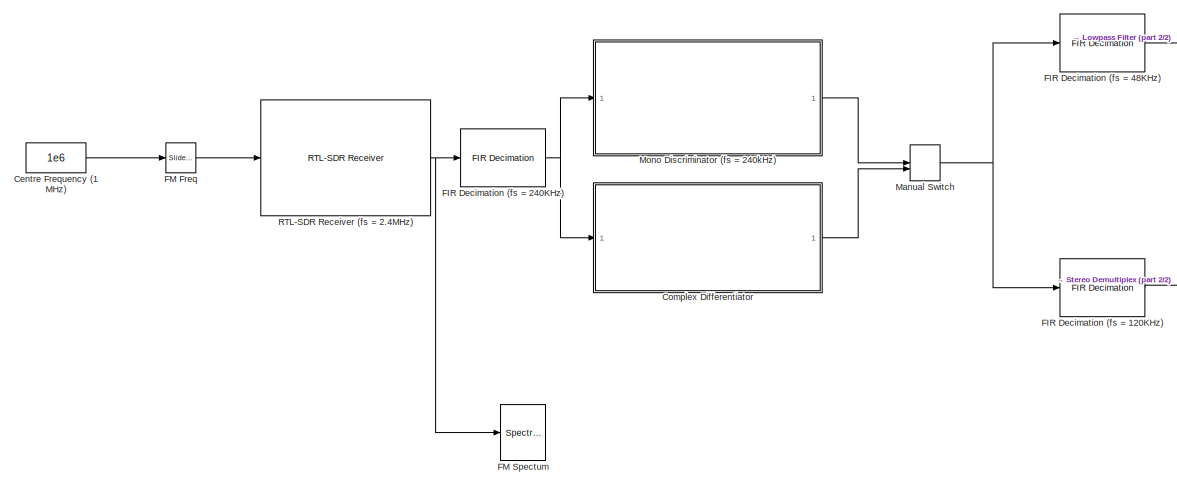
[diagram: root canvas - part 1/2, left side, full height]
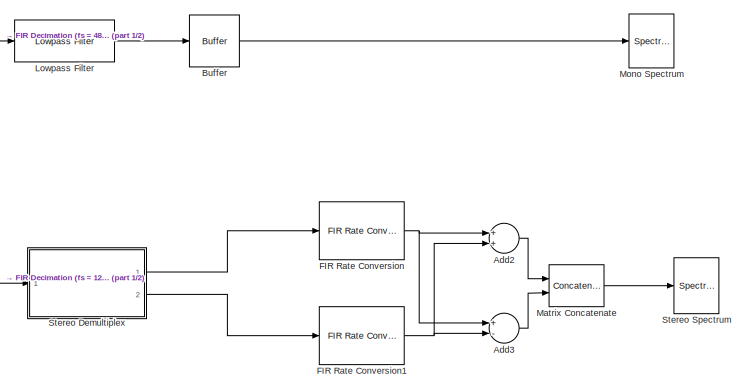
[diagram: root canvas - part 2/2, right side, full height]
MODEL slx_1be4670812ec
KIND model
CONFIG AbsTol = auto
CONFIG EnableMultiTasking = off
CONFIG FixedStep = auto
CONFIG MaxStep = auto
CONFIG MinStep = auto
CONFIG PreLoadFcn = fs = 120e3;\naudio_fs = 48e3;\n[num, den] = cheby2(22,100,18e3/(fs/2),'low');\n\n% nco design\nfreq_res = 0.05;                              % nco freq resolution in Hz\nacc_wordlen = ceil(log2(1/((1/fs)*freq_res))); % calc required wordlength\nsfdr = 80;                                  % spurious free dynamic range of nco (noise floor level)\nphase_inc = 2^acc_wordlen/fs;    % NCO phase increment\nquant_...<+288ch>
CONFIG RelTol = 1e-3
CONFIG SampleTimeConstraint = Unconstrained
CONFIG Solver = VariableStepAuto
CONFIG SolverName = VariableStepAuto
CONFIG StartTime = 0.0
CONFIG StopTime = inf
BLOCK [Sum] Add2
  InputSameDT = off
  OutDataTypeStr = Inherit: Inherit via internal rule
  Ports = [2, 1]
  SaturateOnIntegerOverflow = off
BLOCK [Sum] Add3
  InputSameDT = off
  Inputs = +-
  OutDataTypeStr = Inherit: Inherit via internal rule
  Ports = [2, 1]
  SaturateOnIntegerOverflow = off
BLOCK [Buffer] Buffer
  N = 4000
  OutputFrames = off
BLOCK [Constant] Centre Frequency (1 MHz)
  Value = 1e6
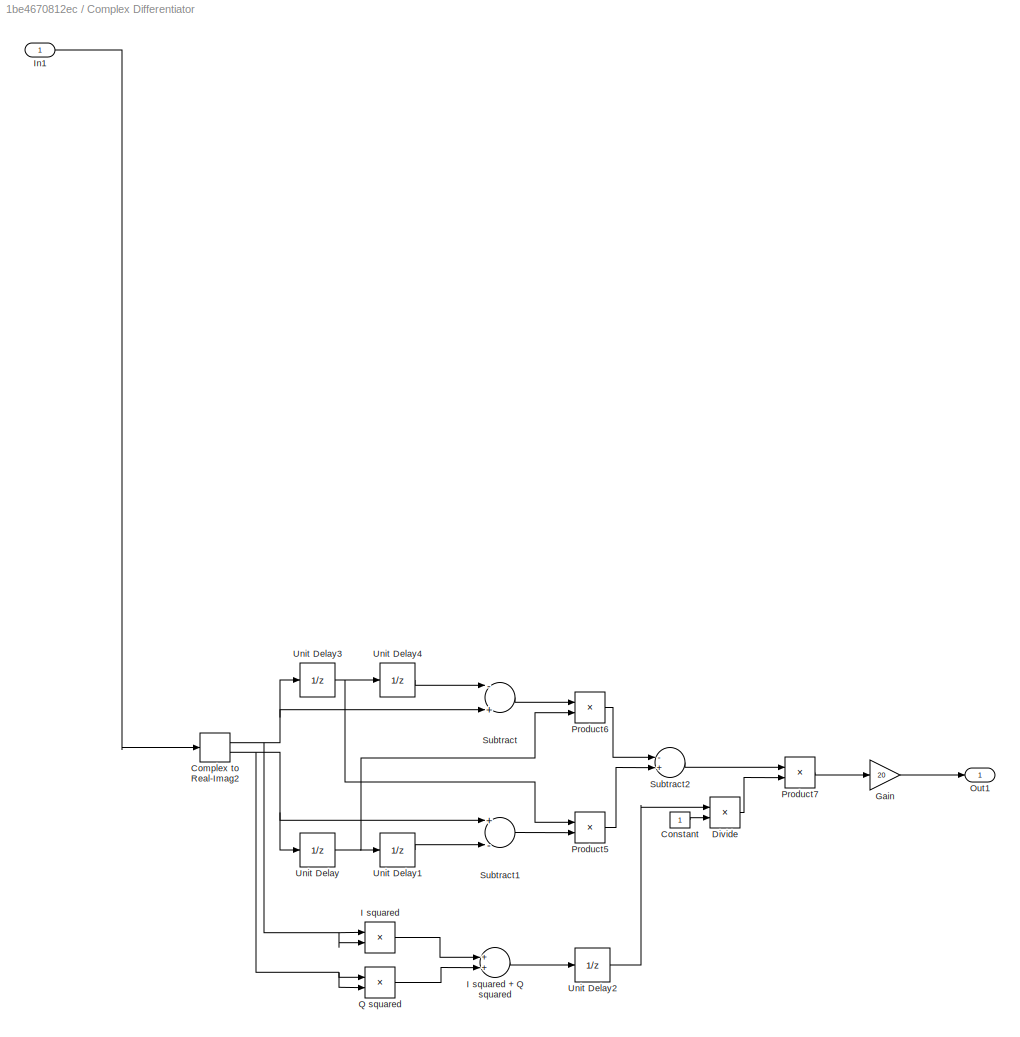
BLOCK [SubSystem] Complex Differentiator
  Ports = [1, 1]
  RequestExecContextInheritance = off
BLOCK [ComplexToRealImag] Complex Differentiator/Complex to Real-Imag2
  Ports = [1, 2]
BLOCK [Constant] Complex Differentiator/Constant
BLOCK [Product] Complex Differentiator/Divide
  InputSameDT = off
  Inputs = */
  OutDataTypeStr = Inherit: Inherit via internal rule
  Ports = [2, 1]
  RndMeth = Floor
  SaturateOnIntegerOverflow = off
BLOCK [Gain] Complex Differentiator/Gain
  Gain = 20
  OutDataTypeStr = Inherit: Inherit via internal rule
  ParamDataTypeStr = Inherit: Inherit via internal rule
  SaturateOnIntegerOverflow = off
BLOCK [Sum] Complex Differentiator/I  squared + Q  squared
  InputSameDT = off
  OutDataTypeStr = Inherit: Inherit via internal rule
  Ports = [2, 1]
  SaturateOnIntegerOverflow = off
BLOCK [Product] Complex Differentiator/I squared
  InputSameDT = off
  OutDataTypeStr = Inherit: Inherit via internal rule
  Ports = [2, 1]
  RndMeth = Floor
  SaturateOnIntegerOverflow = off
BLOCK [Inport] Complex Differentiator/In1
  IconDisplay = Port number
BLOCK [Outport] Complex Differentiator/Out1
  IconDisplay = Port number
BLOCK [Product] Complex Differentiator/Product5
  InputSameDT = off
  OutDataTypeStr = Inherit: Inherit via internal rule
  Ports = [2, 1]
  RndMeth = Floor
  SaturateOnIntegerOverflow = off
BLOCK [Product] Complex Differentiator/Product6
  InputSameDT = off
  OutDataTypeStr = Inherit: Inherit via internal rule
  Ports = [2, 1]
  RndMeth = Floor
  SaturateOnIntegerOverflow = off
BLOCK [Product] Complex Differentiator/Product7
  InputSameDT = off
  OutDataTypeStr = Inherit: Inherit via internal rule
  Ports = [2, 1]
  RndMeth = Floor
  SaturateOnIntegerOverflow = off
BLOCK [Product] Complex Differentiator/Q  squared
  InputSameDT = off
  OutDataTypeStr = Inherit: Inherit via internal rule
  Ports = [2, 1]
  RndMeth = Floor
  SaturateOnIntegerOverflow = off
BLOCK [Sum] Complex Differentiator/Subtract
  InputSameDT = off
  Inputs = -+
  OutDataTypeStr = Inherit: Inherit via internal rule
  Ports = [2, 1]
  SaturateOnIntegerOverflow = off
BLOCK [Sum] Complex Differentiator/Subtract1
  InputSameDT = off
  Inputs = +-
  OutDataTypeStr = Inherit: Inherit via internal rule
  Ports = [2, 1]
  SaturateOnIntegerOverflow = off
BLOCK [Sum] Complex Differentiator/Subtract2
  InputSameDT = off
  Inputs = -+
  OutDataTypeStr = Inherit: Inherit via internal rule
  Ports = [2, 1]
  SaturateOnIntegerOverflow = off
BLOCK [UnitDelay] Complex Differentiator/Unit Delay
  SampleTime = -1
BLOCK [UnitDelay] Complex Differentiator/Unit Delay1
  SampleTime = -1
BLOCK [UnitDelay] Complex Differentiator/Unit Delay2
  SampleTime = -1
BLOCK [UnitDelay] Complex Differentiator/Unit Delay3
  SampleTime = -1
BLOCK [UnitDelay] Complex Differentiator/Unit Delay4
  SampleTime = -1
BLOCK [Reference] FIR Decimation (fs = 120KHz)  REF=dspmlti4/FIR
Decimation
  Ports = [1, 1]
  SourceBlock = dspmlti4/FIR\nDecimation
  SourceProductBaseCode = DS
  SourceProductName = DSP System Toolbox
  SourceType = FIR Decimation
  UserDataPersistent = on
BLOCK [Reference] FIR Decimation (fs = 240KHz)  REF=dspmlti4/FIR
Decimation
  Ports = [1, 1]
  SourceBlock = dspmlti4/FIR\nDecimation
  SourceProductBaseCode = DS
  SourceProductName = DSP System Toolbox
  SourceType = FIR Decimation
  UserDataPersistent = on
BLOCK [Reference] FIR Decimation (fs = 48KHz)   REF=dspmlti4/FIR
Decimation
  Ports = [1, 1]
  SourceBlock = dspmlti4/FIR\nDecimation
  SourceProductBaseCode = DS
  SourceProductName = DSP System Toolbox
  SourceType = FIR Decimation
  UserDataPersistent = on
BLOCK [Reference] FIR Rate Conversion  REF=dspmlti4/FIR Rate
Conversion
  Ports = [1, 1]
  SourceBlock = dspmlti4/FIR Rate\nConversion
  SourceProductBaseCode = DS
  SourceProductName = DSP System Toolbox
  SourceType = FIR Rate Conversion
BLOCK [Reference] FIR Rate Conversion1  REF=dspmlti4/FIR Rate
Conversion
  Ports = [1, 1]
  SourceBlock = dspmlti4/FIR Rate\nConversion
  SourceProductBaseCode = DS
  SourceProductName = DSP System Toolbox
  SourceType = FIR Rate Conversion
BLOCK [Reference] FM Freq   REF=simulink/Math
Operations/Slider
Gain
  Ports = [1, 1]
  SourceBlock = simulink/Math\nOperations/Slider\nGain
  SourceProductBaseCode = SL
  SourceProductName = Simulink
  SourceType = Slider Gain
BLOCK [SpectrumAnalyzer] FM Spectum
  Ports = [1]
  ScopeSpecificationString = spbscopes.SpectrumAnalyzerBlockCfg('CurrentConfiguration', extmgr.ConfigurationSet(extmgr.Configuration('Core','General UI',true),extmgr.Configuration('Core','Source UI',true),extmgr.Configuration('Sources','WiredSimulink',true),extmgr.Configuration('Sources','SimulinkEvent',false),extmgr.Configuration('Sources','Simulink',false),extmgr.Configuration('Sources','SPTool',false),extmgr.Configuration(...<+3671ch>
BLOCK [Reference] Lowpass Filter  REF=dspfdesign/Lowpass Filter
  Ports = [1, 1]
  SourceBlock = dspfdesign/Lowpass Filter
  SourceProductBaseCode = DS
  SourceProductName = DSP System Toolbox
  SourceType = dsp.LowpassFilter
BLOCK [ManualSwitch] Manual Switch
BLOCK [Concatenate] Matrix Concatenate
  ConcatenateDimension = 2
  Mode = Multidimensional array
  Ports = [2, 1]
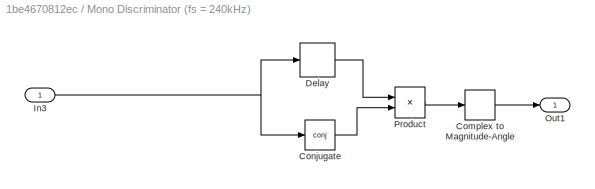
BLOCK [SubSystem] Mono Discriminator (fs = 240kHz)
  Ports = [1, 1]
  RequestExecContextInheritance = off
BLOCK [ComplexToMagnitudeAngle] Mono Discriminator (fs = 240kHz)/Complex to Magnitude-Angle
  Output = Angle
  Ports = [1, 1]
BLOCK [Math] Mono Discriminator (fs = 240kHz)/Conjugate
  Operator = conj
  Ports = [1, 1]
BLOCK [Delay] Mono Discriminator (fs = 240kHz)/Delay
  DelayLength = 1
  InputPortMap = u0
  InputProcessing = Columns as channels (frame based)
  Ports = [1, 1]
BLOCK [Inport] Mono Discriminator (fs = 240kHz)/In3
  IconDisplay = Port number
BLOCK [Outport] Mono Discriminator (fs = 240kHz)/Out1
  IconDisplay = Port number
BLOCK [Product] Mono Discriminator (fs = 240kHz)/Product
  InputSameDT = off
  OutDataTypeStr = Inherit: Inherit via internal rule
  Ports = [2, 1]
  RndMeth = Floor
  SaturateOnIntegerOverflow = off
BLOCK [SpectrumAnalyzer] Mono Spectrum 
  Ports = [1]
  ScopeSpecificationString = spbscopes.SpectrumAnalyzerBlockCfg('CurrentConfiguration', extmgr.ConfigurationSet(extmgr.Configuration('Core','General UI',true),extmgr.Configuration('Core','Source UI',true),extmgr.Configuration('Sources','WiredSimulink',true),extmgr.Configuration('Sources','SimulinkEvent',false),extmgr.Configuration('Sources','Simulink',false),extmgr.Configuration('Sources','SPTool',false),extmgr.Configuration(...<+3270ch>
BLOCK [Reference] RTL-SDR Receiver (fs = 2.4MHz)  REF=sdrrlib/RTL-SDR
Receiver
  Ports = [1, 1]
  SourceBlock = sdrrlib/RTL-SDR\nReceiver
  SourceProductBaseCode = RTLSDR
  SourceProductName = Communications System Toolbox Support Package for RTL-SDR Radio
  SourceType = RTL-SDR Receiver
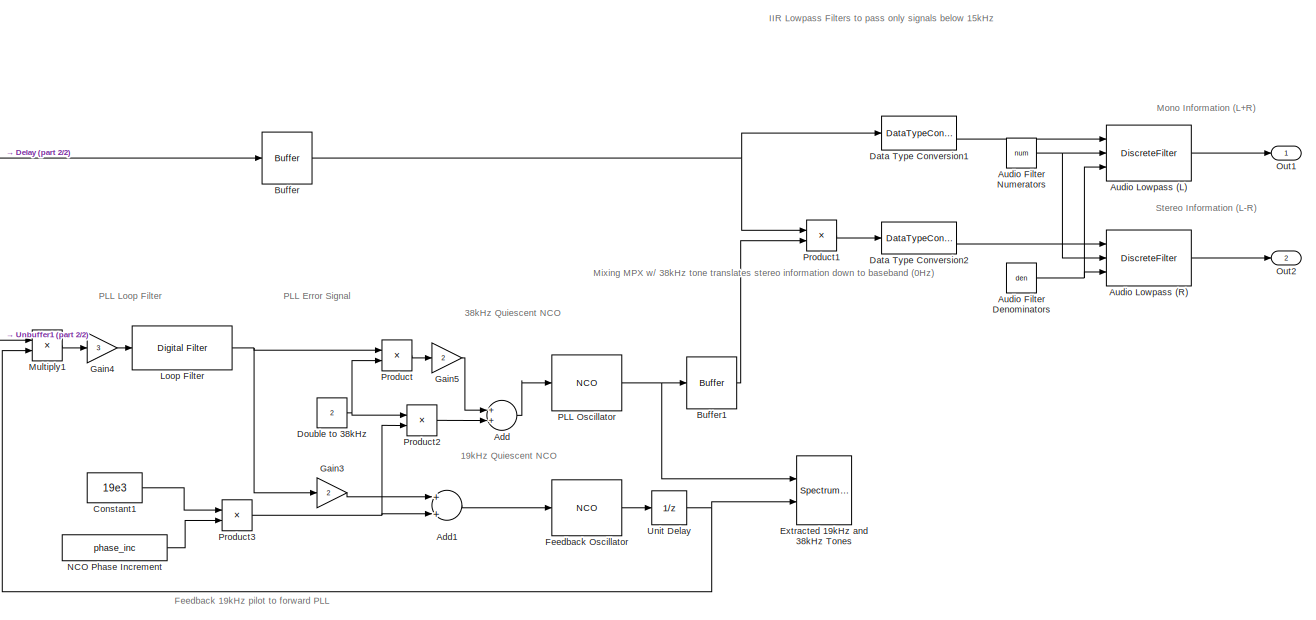
[diagram: Stereo Demultiplex - part 1/2, center side, full height]
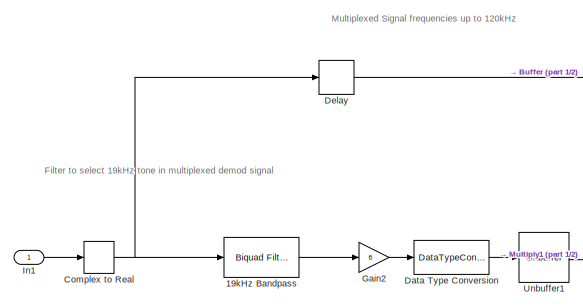
[diagram: Stereo Demultiplex - part 2/2, middle left region]
BLOCK [SubSystem] Stereo Demultiplex
  Ports = [1, 2]
  RequestExecContextInheritance = off
BLOCK [Reference] Stereo Demultiplex/19kHz Bandpass  REF=dsparch4/Biquad Filter
  Ports = [1, 1]
  SourceBlock = dsparch4/Biquad Filter
  SourceProductBaseCode = DS
  SourceProductName = DSP System Toolbox
  SourceType = Biquad Filter
  Tag = BlockMethodSubSystem
  UserDataPersistent = on
BLOCK [Sum] Stereo Demultiplex/Add
  InputSameDT = off
  Ports = [2, 1]
  SaturateOnIntegerOverflow = off
BLOCK [Sum] Stereo Demultiplex/Add1
  InputSameDT = off
  Ports = [2, 1]
  SaturateOnIntegerOverflow = off
BLOCK [Constant] Stereo Demultiplex/Audio Filter Denominators
  Value = den
BLOCK [Constant] Stereo Demultiplex/Audio Filter Numerators 
  Value = num
BLOCK [DiscreteFilter] Stereo Demultiplex/Audio Lowpass (L)
  Denominator = [1 0.1]
  DenominatorSource = Input port
  FilterStructure = Direct form II transposed
  InputPortMap = u0,p1,p3
  InputProcessing = Columns as channels (frame based)
  Numerator = [0.5 0.5]
  NumeratorSource = Input port
  Ports = [3, 1]
  a0EqualsOne = on
BLOCK [DiscreteFilter] Stereo Demultiplex/Audio Lowpass (R)
  Denominator = [1 0.1]
  DenominatorSource = Input port
  FilterStructure = Direct form II transposed
  InputPortMap = u0,p1,p3
  InputProcessing = Columns as channels (frame based)
  Numerator = [0.5 0.5]
  NumeratorSource = Input port
  Ports = [3, 1]
  a0EqualsOne = on
BLOCK [Buffer] Stereo Demultiplex/Buffer
  N = 4000
  OutputFrames = off
BLOCK [Buffer] Stereo Demultiplex/Buffer1
  N = 4000
  OutputFrames = off
BLOCK [ComplexToRealImag] Stereo Demultiplex/Complex to Real
  Output = Real
  Ports = [1, 1]
BLOCK [Constant] Stereo Demultiplex/Constant1
  OutDataTypeStr = uint32
  Value = 19e3
BLOCK [DataTypeConversion] Stereo Demultiplex/Data Type Conversion
  SaturateOnIntegerOverflow = off
BLOCK [DataTypeConversion] Stereo Demultiplex/Data Type Conversion1
  RndMeth = Simplest
  SaturateOnIntegerOverflow = off
BLOCK [DataTypeConversion] Stereo Demultiplex/Data Type Conversion2
  RndMeth = Simplest
  SaturateOnIntegerOverflow = off
BLOCK [Delay] Stereo Demultiplex/Delay
  DelayLength = 6
  InitialCondition = 0
  InputPortMap = u0
  InputProcessing = Columns as channels (frame based)
  Ports = [1, 1]
BLOCK [Constant] Stereo Demultiplex/Double to 38kHz
  Value = 2
BLOCK [SpectrumAnalyzer] Stereo Demultiplex/Extracted 19kHz and 38kHz Tones 
  NumInputPorts = 2
  Ports = [2]
  ScopeSpecificationString = spbscopes.SpectrumAnalyzerBlockCfg('CurrentConfiguration', extmgr.ConfigurationSet(extmgr.Configuration('Core','General UI',true),extmgr.Configuration('Core','Source UI',true),extmgr.Configuration('Sources','WiredSimulink',true),extmgr.Configuration('Sources','SimulinkEvent',false),extmgr.Configuration('Sources','Simulink',false),extmgr.Configuration('Sources','SPTool',false),extmgr.Configuration(...<+3372ch>
BLOCK [Reference] Stereo Demultiplex/Feedback Oscillator  REF=dspsigops/NCO
  Ports = [1, 1]
  SourceBlock = dspsigops/NCO
  SourceProductBaseCode = DS
  SourceProductName = DSP System Toolbox
  SourceType = NCO
BLOCK [Gain] Stereo Demultiplex/Gain2
  Gain = 6
  OutDataTypeStr = Inherit: Inherit via internal rule
  ParamDataTypeStr = Inherit: Inherit via internal rule
  SaturateOnIntegerOverflow = off
BLOCK [Gain] Stereo Demultiplex/Gain3
  Gain = 2
  OutDataTypeStr = int32
  ParamDataTypeStr = Inherit: Inherit via internal rule
  SaturateOnIntegerOverflow = off
BLOCK [Gain] Stereo Demultiplex/Gain4
  Gain = 3
  OutDataTypeStr = Inherit: Inherit via internal rule
  ParamDataTypeStr = Inherit: Inherit via internal rule
  SaturateOnIntegerOverflow = off
BLOCK [Gain] Stereo Demultiplex/Gain5
  Gain = 2
  OutDataTypeStr = int32
  ParamDataTypeStr = Inherit: Inherit via internal rule
  SaturateOnIntegerOverflow = off
BLOCK [Inport] Stereo Demultiplex/In1
  IconDisplay = Port number
BLOCK [Reference] Stereo Demultiplex/Loop Filter  REF=dspobslib/Digital Filter
  Ports = [1, 1]
  SourceBlock = dspobslib/Digital Filter
  SourceProductBaseCode = DS
  SourceProductName = DSP System Toolbox
  SourceType = Digital Filter
  UserDataPersistent = on
BLOCK [Product] Stereo Demultiplex/Multiply1
  InputSameDT = off
  OutDataTypeStr = Inherit: Inherit via back propagation
  Ports = [2, 1]
  RndMeth = Floor
  SaturateOnIntegerOverflow = off
BLOCK [Constant] Stereo Demultiplex/NCO Phase Increment
  OutDataTypeStr = uint32
  Value = phase_inc
BLOCK [Outport] Stereo Demultiplex/Out1
  IconDisplay = Port number
BLOCK [Outport] Stereo Demultiplex/Out2
  IconDisplay = Port number
  Port = 2
BLOCK [Reference] Stereo Demultiplex/PLL Oscillator  REF=dspsigops/NCO
  Ports = [1, 1]
  SourceBlock = dspsigops/NCO
  SourceProductBaseCode = DS
  SourceProductName = DSP System Toolbox
  SourceType = NCO
BLOCK [Product] Stereo Demultiplex/Product
  InputSameDT = off
  OutDataTypeStr = Inherit: Inherit via internal rule
  Ports = [2, 1]
  RndMeth = Floor
  SaturateOnIntegerOverflow = off
BLOCK [Product] Stereo Demultiplex/Product1
  InputSameDT = off
  OutDataTypeStr = Inherit: Inherit via internal rule
  Ports = [2, 1]
  RndMeth = Floor
  SaturateOnIntegerOverflow = off
BLOCK [Product] Stereo Demultiplex/Product2
  InputSameDT = off
  OutDataTypeStr = Inherit: Inherit via internal rule
  Ports = [2, 1]
  RndMeth = Floor
  SaturateOnIntegerOverflow = off
BLOCK [Product] Stereo Demultiplex/Product3
  InputSameDT = off
  Ports = [2, 1]
  RndMeth = Floor
  SaturateOnIntegerOverflow = off
BLOCK [Unbuffer] Stereo Demultiplex/Unbuffer1
  Ports = [1, 1]
BLOCK [UnitDelay] Stereo Demultiplex/Unit Delay
  SampleTime = -1
BLOCK [SpectrumAnalyzer] Stereo Spectrum 
  Ports = [1]
  ScopeSpecificationString = spbscopes.SpectrumAnalyzerBlockCfg('CurrentConfiguration', extmgr.ConfigurationSet(extmgr.Configuration('Core','General UI',true),extmgr.Configuration('Core','Source UI',true),extmgr.Configuration('Sources','WiredSimulink',true),extmgr.Configuration('Sources','SimulinkEvent',false),extmgr.Configuration('Sources','Simulink',false),extmgr.Configuration('Sources','SPTool',false),extmgr.Configuration(...<+3685ch>
ANNOTATION Stereo Demultiplex: Mixing MPX w/ 38kHz tone translates stereo information down to baseband (0Hz)
ANNOTATION Stereo Demultiplex: Stereo Information (L-R)
ANNOTATION Stereo Demultiplex: Feedback 19kHz pilot to forward PLL
ANNOTATION Stereo Demultiplex: Multiplexed Signal frequencies up to 120kHz
ANNOTATION Stereo Demultiplex: Mono Information (L+R)
ANNOTATION Stereo Demultiplex: 19kHz Quiescent NCO
ANNOTATION Stereo Demultiplex: 38kHz Quiescent NCO
ANNOTATION Stereo Demultiplex: PLL Error Signal
ANNOTATION Stereo Demultiplex: PLL Loop Filter
ANNOTATION Stereo Demultiplex: Filter to select 19kHz tone in multiplexed demod signal
ANNOTATION Stereo Demultiplex: IIR Lowpass Filters to pass only signals below 15kHz
LINE Add2:1 -> Matrix Concatenate:1
LINE Add3:1 -> Matrix Concatenate:2
LINE Buffer:1 -> Mono Spectrum :1
LINE Centre Frequency (1 MHz):1 -> FM Freq :1
NET Complex Differentiator/Complex to Real-Imag2:1 -> Complex Differentiator/I squared:1, Complex Differentiator/I squared:2, Complex Differentiator/Subtract:2, Complex Differentiator/Unit Delay3:1
NET Complex Differentiator/Complex to Real-Imag2:2 -> Complex Differentiator/Q  squared:1, Complex Differentiator/Q  squared:2, Complex Differentiator/Subtract1:1, Complex Differentiator/Unit Delay:1
LINE Complex Differentiator/Constant:1 -> Complex Differentiator/Divide:2
LINE Complex Differentiator/Divide:1 -> Complex Differentiator/Product7:2
LINE Complex Differentiator/Gain:1 -> Complex Differentiator/Out1:1
LINE Complex Differentiator/I  squared + Q  squared:1 -> Complex Differentiator/Unit Delay2:1
LINE Complex Differentiator/I squared:1 -> Complex Differentiator/I  squared + Q  squared:1
LINE Complex Differentiator/In1:1 -> Complex Differentiator/Complex to Real-Imag2:1
LINE Complex Differentiator/Product5:1 -> Complex Differentiator/Subtract2:2
LINE Complex Differentiator/Product6:1 -> Complex Differentiator/Subtract2:1
LINE Complex Differentiator/Product7:1 -> Complex Differentiator/Gain:1
LINE Complex Differentiator/Q  squared:1 -> Complex Differentiator/I  squared + Q  squared:2
LINE Complex Differentiator/Subtract1:1 -> Complex Differentiator/Product5:2
LINE Complex Differentiator/Subtract2:1 -> Complex Differentiator/Product7:1
LINE Complex Differentiator/Subtract:1 -> Complex Differentiator/Product6:1
LINE Complex Differentiator/Unit Delay1:1 -> Complex Differentiator/Subtract1:2
LINE Complex Differentiator/Unit Delay2:1 -> Complex Differentiator/Divide:1
NET Complex Differentiator/Unit Delay3:1 -> Complex Differentiator/Product5:1, Complex Differentiator/Unit Delay4:1
LINE Complex Differentiator/Unit Delay4:1 -> Complex Differentiator/Subtract:1
NET Complex Differentiator/Unit Delay:1 -> Complex Differentiator/Product6:2, Complex Differentiator/Unit Delay1:1
LINE Complex Differentiator:1 -> Manual Switch:2
LINE FIR Decimation (fs = 120KHz):1 -> Stereo Demultiplex:1
NET FIR Decimation (fs = 240KHz):1 -> Complex Differentiator:1, Mono Discriminator (fs = 240kHz):1
LINE FIR Decimation (fs = 48KHz) :1 -> Lowpass Filter:1
NET FIR Rate Conversion1:1 -> Add2:2, Add3:2
NET FIR Rate Conversion:1 -> Add2:1, Add3:1
LINE FM Freq :1 -> RTL-SDR Receiver (fs = 2.4MHz):1
LINE Lowpass Filter:1 -> Buffer:1
NET Manual Switch:1 -> FIR Decimation (fs = 120KHz):1, FIR Decimation (fs = 48KHz) :1
LINE Matrix Concatenate:1 -> Stereo Spectrum :1
LINE Mono Discriminator (fs = 240kHz)/Complex to Magnitude-Angle:1 -> Mono Discriminator (fs = 240kHz)/Out1:1
LINE Mono Discriminator (fs = 240kHz)/Conjugate:1 -> Mono Discriminator (fs = 240kHz)/Product:2
LINE Mono Discriminator (fs = 240kHz)/Delay:1 -> Mono Discriminator (fs = 240kHz)/Product:1
NET Mono Discriminator (fs = 240kHz)/In3:1 -> Mono Discriminator (fs = 240kHz)/Conjugate:1, Mono Discriminator (fs = 240kHz)/Delay:1
LINE Mono Discriminator (fs = 240kHz)/Product:1 -> Mono Discriminator (fs = 240kHz)/Complex to Magnitude-Angle:1
LINE Mono Discriminator (fs = 240kHz):1 -> Manual Switch:1
NET RTL-SDR Receiver (fs = 2.4MHz):1 -> FIR Decimation (fs = 240KHz):1, FM Spectum:1
LINE Stereo Demultiplex/19kHz Bandpass:1 -> Stereo Demultiplex/Gain2:1
LINE Stereo Demultiplex/Add1:1 -> Stereo Demultiplex/Feedback Oscillator:1
LINE Stereo Demultiplex/Add:1 -> Stereo Demultiplex/PLL Oscillator:1
NET Stereo Demultiplex/Audio Filter Denominators:1 -> Stereo Demultiplex/Audio Lowpass (L):3, Stereo Demultiplex/Audio Lowpass (R):3
NET Stereo Demultiplex/Audio Filter Numerators :1 -> Stereo Demultiplex/Audio Lowpass (L):2, Stereo Demultiplex/Audio Lowpass (R):2
LINE Stereo Demultiplex/Audio Lowpass (L):1 -> Stereo Demultiplex/Out1:1
LINE Stereo Demultiplex/Audio Lowpass (R):1 -> Stereo Demultiplex/Out2:1
LINE Stereo Demultiplex/Buffer1:1 -> Stereo Demultiplex/Product1:2
NET Stereo Demultiplex/Buffer:1 -> Stereo Demultiplex/Data Type Conversion1:1, Stereo Demultiplex/Product1:1
NET Stereo Demultiplex/Complex to Real:1 -> Stereo Demultiplex/19kHz Bandpass:1, Stereo Demultiplex/Delay:1
LINE Stereo Demultiplex/Constant1:1 -> Stereo Demultiplex/Product3:1
LINE Stereo Demultiplex/Data Type Conversion1:1 -> Stereo Demultiplex/Audio Lowpass (L):1
LINE Stereo Demultiplex/Data Type Conversion2:1 -> Stereo Demultiplex/Audio Lowpass (R):1
LINE Stereo Demultiplex/Data Type Conversion:1 -> Stereo Demultiplex/Unbuffer1:1
LINE Stereo Demultiplex/Delay:1 -> Stereo Demultiplex/Buffer:1
NET Stereo Demultiplex/Double to 38kHz:1 -> Stereo Demultiplex/Product2:1, Stereo Demultiplex/Product:2
LINE Stereo Demultiplex/Feedback Oscillator:1 -> Stereo Demultiplex/Unit Delay:1
LINE Stereo Demultiplex/Gain2:1 -> Stereo Demultiplex/Data Type Conversion:1
LINE Stereo Demultiplex/Gain3:1 -> Stereo Demultiplex/Add1:1
LINE Stereo Demultiplex/Gain4:1 -> Stereo Demultiplex/Loop Filter:1
LINE Stereo Demultiplex/Gain5:1 -> Stereo Demultiplex/Add:1
LINE Stereo Demultiplex/In1:1 -> Stereo Demultiplex/Complex to Real:1
NET Stereo Demultiplex/Loop Filter:1 -> Stereo Demultiplex/Gain3:1, Stereo Demultiplex/Product:1
LINE Stereo Demultiplex/Multiply1:1 -> Stereo Demultiplex/Gain4:1
LINE Stereo Demultiplex/NCO Phase Increment:1 -> Stereo Demultiplex/Product3:2
NET Stereo Demultiplex/PLL Oscillator:1 -> Stereo Demultiplex/Buffer1:1, Stereo Demultiplex/Extracted 19kHz and 38kHz Tones :1
LINE Stereo Demultiplex/Product1:1 -> Stereo Demultiplex/Data Type Conversion2:1
LINE Stereo Demultiplex/Product2:1 -> Stereo Demultiplex/Add:2
NET Stereo Demultiplex/Product3:1 -> Stereo Demultiplex/Add1:2, Stereo Demultiplex/Product2:2
LINE Stereo Demultiplex/Product:1 -> Stereo Demultiplex/Gain5:1
LINE Stereo Demultiplex/Unbuffer1:1 -> Stereo Demultiplex/Multiply1:1
NET Stereo Demultiplex/Unit Delay:1 -> Stereo Demultiplex/Extracted 19kHz and 38kHz Tones :2, Stereo Demultiplex/Multiply1:2
LINE Stereo Demultiplex:1 -> FIR Rate Conversion:1
LINE Stereo Demultiplex:2 -> FIR Rate Conversion1:1
note: NET lines group one-source signal fan-out (src -> all destinations, sorted); 1:1 wires keep LINE
